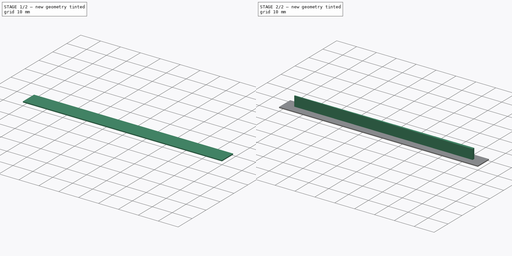
[diagram: build sequence overview — one tinted view per stage of 2, left to right]
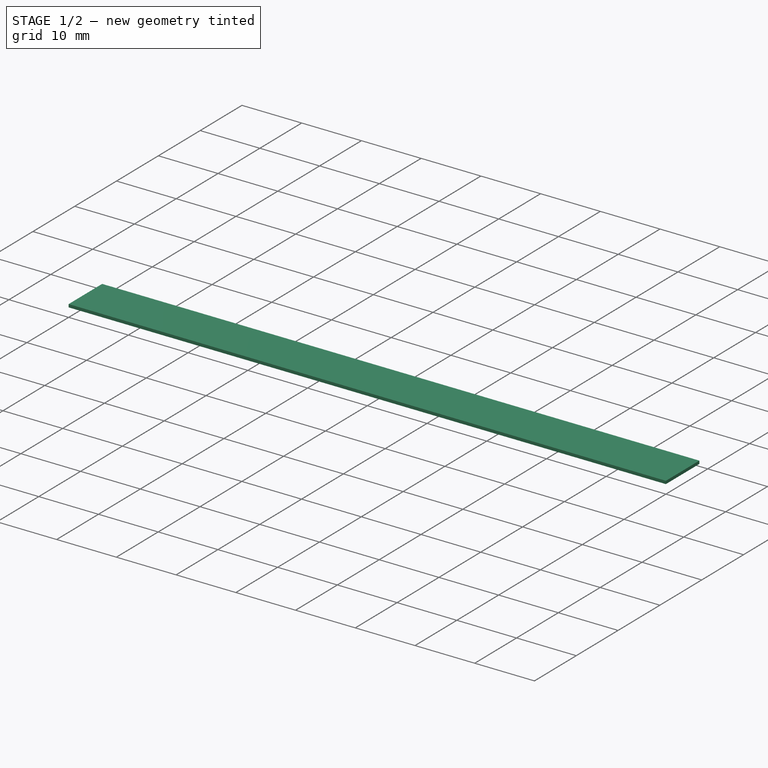
[diagram: stage 1 of 2 — iso view after this stage's code; geometry added in this stage tinted green]
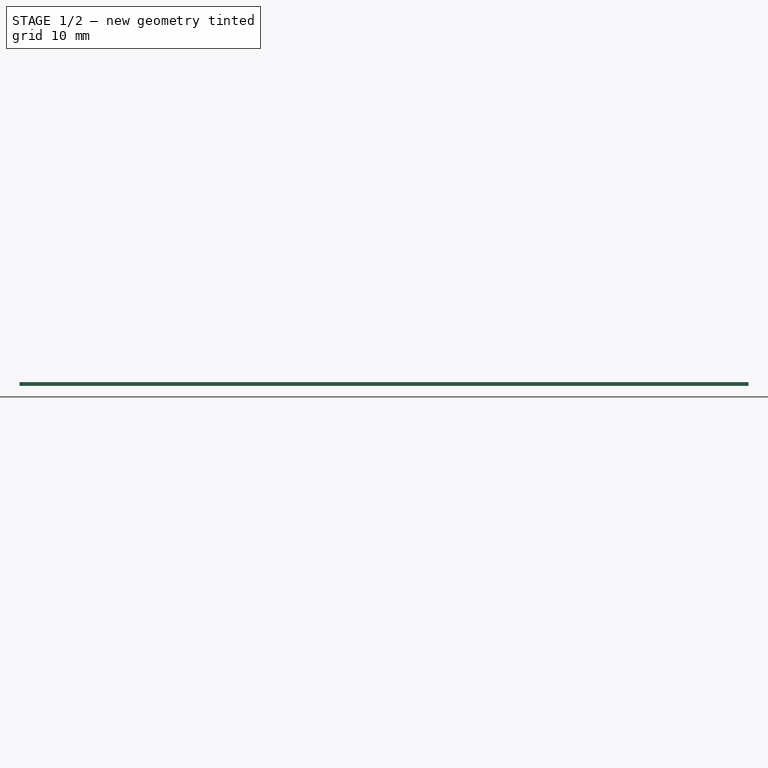
[diagram: stage 1 of 2 — front view after this stage's code; geometry added in this stage tinted green]
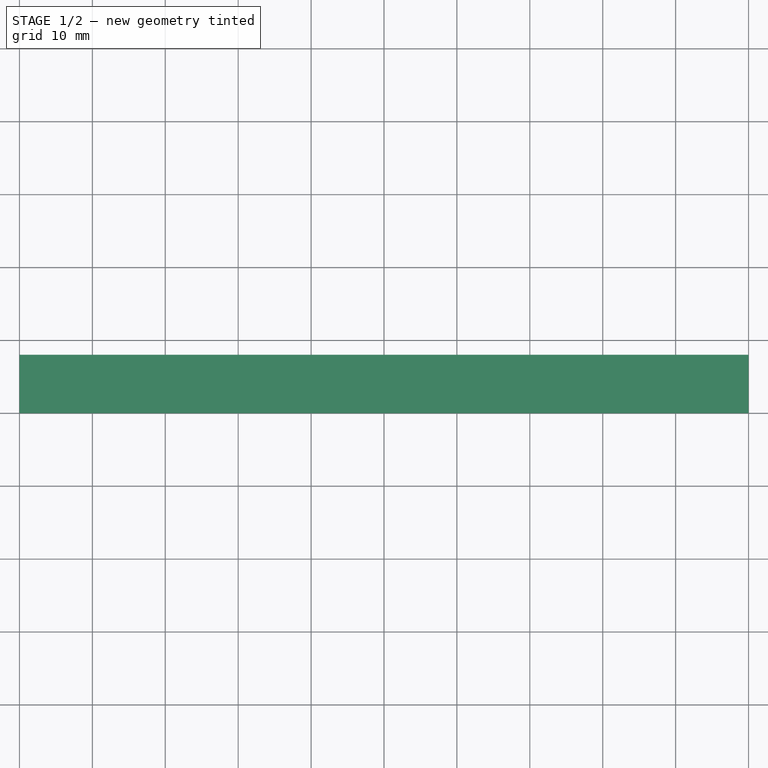
[diagram: stage 1 of 2 — top view after this stage's code; geometry added in this stage tinted green]
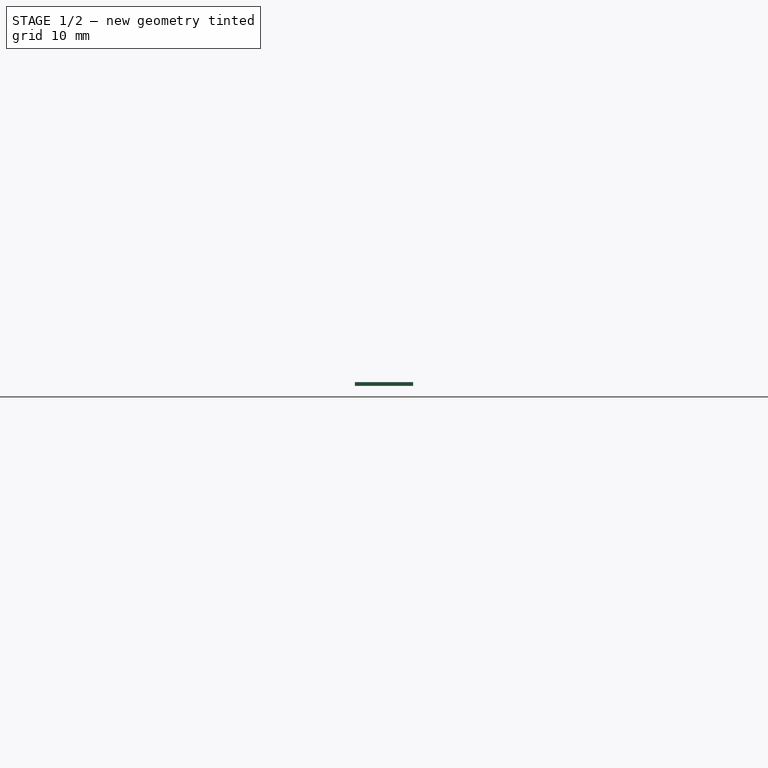
[diagram: stage 1 of 2 — right view after this stage's code; geometry added in this stage tinted green]
FCSTD DOCUMENT  (FreeCAD 0.20R25065 (Git))
Label: gap_fill
License: All rights reserved
LicenseURL: http://en.wikipedia.org/wiki/All_rights_reserved
objects: Sketcher::SketchObject×2, PartDesign::Pad×2, PartDesign::Body×1
note: 7 computed .brp shape members not serialized (recipe doc carries the construction recipe); baked Part::Feature solids carry a one-line shape summary decoded from their .brp

FEATURE [Sketcher::SketchObject] Sketch
  FullyConstrained = true
  MapMode = 5
  Support = -> [XY_Plane]
  sketch-geometry (4):
    g0: LineSegment StartX=0 StartY=0 StartZ=0 EndX=100 EndY=0 EndZ=0
    g1: LineSegment StartX=100 StartY=0 StartZ=0 EndX=100 EndY=8 EndZ=0
    g2: LineSegment StartX=100 StartY=8 StartZ=0 EndX=0 EndY=8 EndZ=0
    g3: LineSegment StartX=0 StartY=8 StartZ=0 EndX=0 EndY=0 EndZ=0
  constraints (11):
    c: Coincident(g0,g1)
    c: Coincident(g1,g2)
    c: Coincident(g2,g3)
    c: Coincident(g3,g0)
    c: Horizontal(g0)
    c: Horizontal(g2)
    c: Vertical(g1)
    c: Vertical(g3)
    c: Coincident(g0,g-1)
    c: Distance(g3) = 8
    c: Distance(g2) = 100
FEATURE [PartDesign::Pad] Pad
  Direction = (0,0,1)
  Length = 0.5
  Length2 = 100
  Profile = -> Sketch
  Type = 0
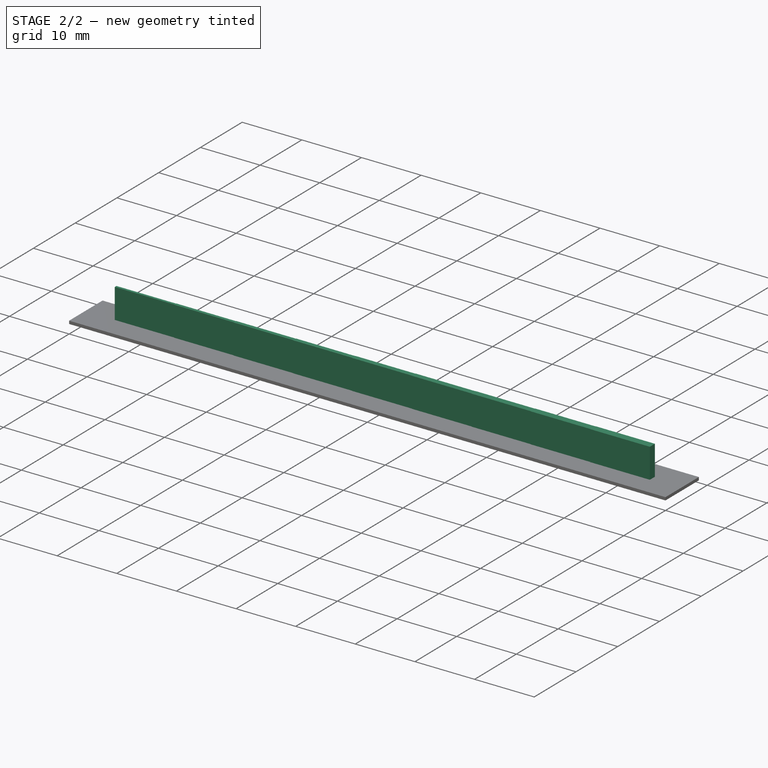
[diagram: stage 2 of 2 — iso view after this stage's code; geometry added in this stage tinted green]
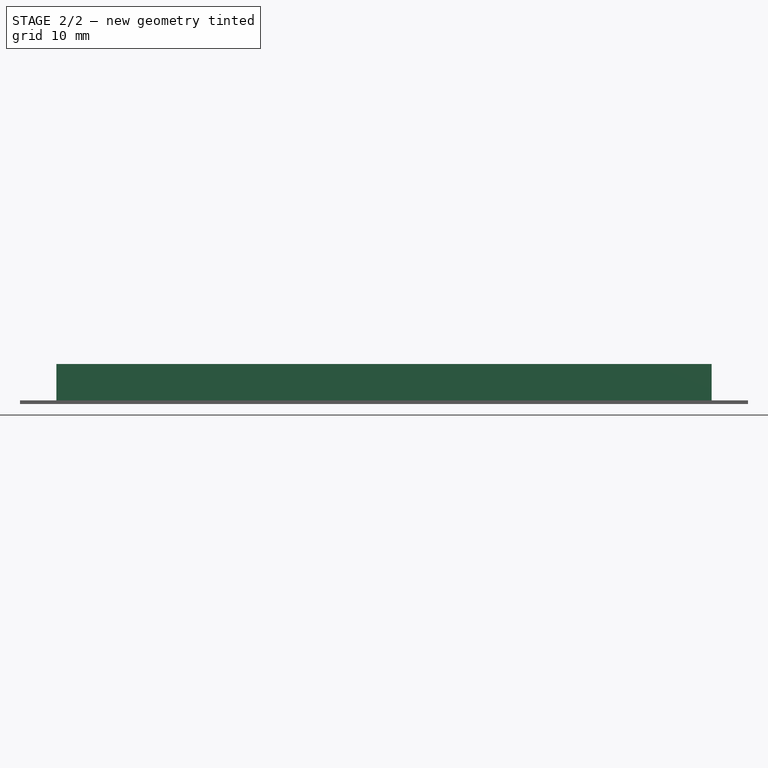
[diagram: stage 2 of 2 — front view after this stage's code; geometry added in this stage tinted green]
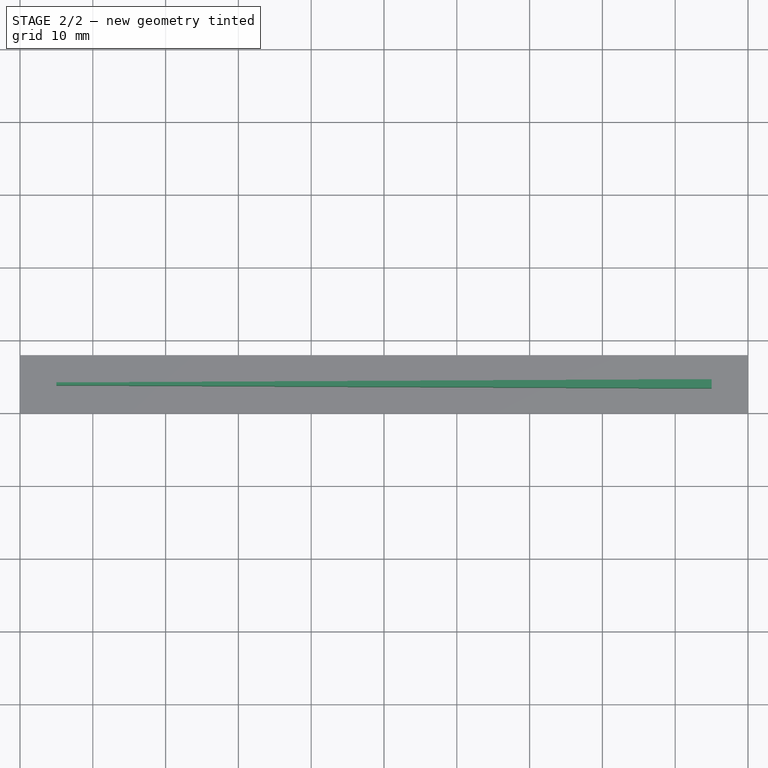
[diagram: stage 2 of 2 — top view after this stage's code; geometry added in this stage tinted green]
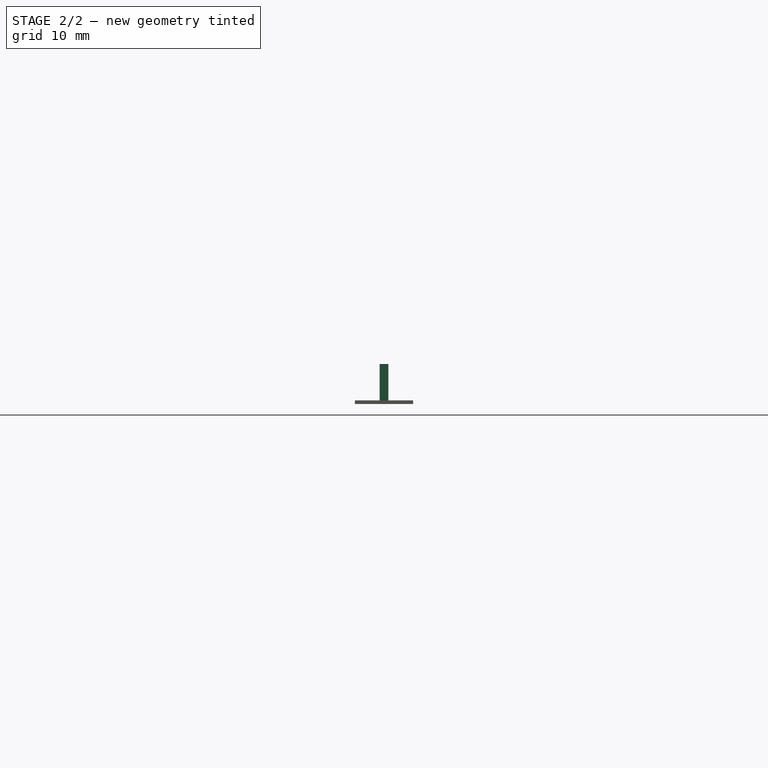
[diagram: stage 2 of 2 — right view after this stage's code; geometry added in this stage tinted green]
FEATURE [Sketcher::SketchObject] Sketch001
  FullyConstrained = false
  MapMode = 5
  Placement = pos=(0,0,0.5) rot=(0,0,1;0rad)
  Support = -> [Pad]
  sketch-geometry (37):
    g0: LineSegment StartX=0 StartY=4 StartZ=0 EndX=99.7559 EndY=4 EndZ=0
    g1: LineSegment StartX=5 StartY=4.2 StartZ=0 EndX=5 EndY=3.8 EndZ=0
    g2: LineSegment StartX=5 StartY=3.8 StartZ=0 EndX=15 EndY=3.8 EndZ=0
    g3: LineSegment StartX=15 StartY=4.25 StartZ=0 EndX=25 EndY=4.25 EndZ=0
    g4: LineSegment StartX=25 StartY=4.25 StartZ=0 EndX=25 EndY=4.3 EndZ=0
    g5: LineSegment StartX=25 StartY=4.3 StartZ=0 EndX=35 EndY=4.3 EndZ=0
    g6: LineSegment StartX=35 StartY=4.3 StartZ=0 EndX=35 EndY=4.35 EndZ=0
    g7: LineSegment StartX=35 StartY=4.35 StartZ=0 EndX=45 EndY=4.35 EndZ=0
    g8: LineSegment StartX=45 StartY=4.35 StartZ=0 EndX=45 EndY=4.4 EndZ=0
    g9: LineSegment StartX=45 StartY=4.4 StartZ=0 EndX=55 EndY=4.4 EndZ=0
    g10: LineSegment StartX=55 StartY=4.4 StartZ=0 EndX=55 EndY=4.45 EndZ=0
    g11: LineSegment StartX=55 StartY=4.45 StartZ=0 EndX=65 EndY=4.45 EndZ=0
    g12: LineSegment StartX=65 StartY=4.45 StartZ=0 EndX=65 EndY=4.5 EndZ=0
    g13: LineSegment StartX=65 StartY=4.5 StartZ=0 EndX=75 EndY=4.5 EndZ=0
    g14: LineSegment StartX=75 StartY=4.5 StartZ=0 EndX=75 EndY=4.55 EndZ=0
    g15: LineSegment StartX=75 StartY=4.55 StartZ=0 EndX=85 EndY=4.55 EndZ=0
    g16: LineSegment StartX=85 StartY=4.6 StartZ=0 EndX=95 EndY=4.6 EndZ=0
    g17: LineSegment StartX=95 StartY=4.6 StartZ=0 EndX=95 EndY=3.4 EndZ=0
    g18: LineSegment StartX=95 StartY=3.4 StartZ=0 EndX=85 EndY=3.4 EndZ=0
    g19: LineSegment StartX=85 StartY=3.4 StartZ=0 EndX=85 EndY=3.45 EndZ=0
    g20: LineSegment StartX=85 StartY=3.45 StartZ=0 EndX=75 EndY=3.45 EndZ=0
    g21: LineSegment StartX=75 StartY=3.45 StartZ=0 EndX=75 EndY=3.5 EndZ=0
    g22: LineSegment StartX=75 StartY=3.5 StartZ=0 EndX=65 EndY=3.5 EndZ=0
    g23: LineSegment StartX=65 StartY=3.5 StartZ=0 EndX=65 EndY=3.55 EndZ=0
    g24: LineSegment StartX=65 StartY=3.55 StartZ=0 EndX=55 EndY=3.55 EndZ=0
    g25: LineSegment StartX=55 StartY=3.55 StartZ=0 EndX=55 EndY=3.6 EndZ=0
    g26: LineSegment StartX=55 StartY=3.6 StartZ=0 EndX=45 EndY=3.6 EndZ=0
    g27: LineSegment StartX=45 StartY=3.6 StartZ=0 EndX=45 EndY=3.65 EndZ=0
    g28: LineSegment StartX=45 StartY=3.65 StartZ=0 EndX=35 EndY=3.65 EndZ=0
    g29: LineSegment StartX=35 StartY=3.65 StartZ=0 EndX=35 EndY=3.7 EndZ=0
    g30: LineSegment StartX=35 StartY=3.7 StartZ=0 EndX=25 EndY=3.7 EndZ=0
    g31: LineSegment StartX=25 StartY=3.7 StartZ=0 EndX=25 EndY=3.75 EndZ=0
    g32: LineSegment StartX=25 StartY=3.75 StartZ=0 EndX=15 EndY=3.75 EndZ=0
    g33: LineSegment StartX=5 StartY=4.2 StartZ=0 EndX=15 EndY=4.2 EndZ=0
    g34: LineSegment StartX=15 StartY=4.2 StartZ=0 EndX=15 EndY=4.25 EndZ=0
    g35: LineSegment StartX=15 StartY=3.75 StartZ=0 EndX=15 EndY=3.8 EndZ=0
    g36: LineSegment StartX=85 StartY=4.55 StartZ=0 EndX=85 EndY=4.6 EndZ=0
  constraints (101):
    c: PointOnObject(g0,g-2)
    c: Horizontal(g0)
    c: Coincident(g2,g1)
    c: Horizontal(g2)
    c: Horizontal(g3)
    c: Coincident(g4,g3)
    c: Coincident(g5,g4)
    c: Horizontal(g5)
    c: Coincident(g6,g5)
    c: Coincident(g7,g6)
    c: Horizontal(g7)
    c: Coincident(g8,g7)
    c: Vertical(g8)
    c: Coincident(g9,g8)
    c: Horizontal(g9)
    c: Coincident(g10,g9)
    c: Coincident(g11,g10)
    c: Horizontal(g11)
    c: Coincident(g12,g11)
    c: Coincident(g13,g12)
    c: Horizontal(g13)
    c: Coincident(g14,g13)
    c: Coincident(g15,g14)
    c: Horizontal(g15)
    c: Horizontal(g16)
    c: Coincident(g19,g18)
    c: Vertical(g19)
    c: Coincident(g20,g19)
    c: Horizontal(g20)
    c: Coincident(g21,g20)
    c: Vertical(g21)
    c: Coincident(g22,g21)
    c: Horizontal(g22)
    c: Coincident(g23,g22)
    c: Vertical(g23)
    c: Coincident(g24,g23)
    c: Horizontal(g24)
    c: Coincident(g25,g24)
    c: Vertical(g25)
    c: Coincident(g26,g25)
    c: Horizontal(g26)
    c: Coincident(g27,g26)
    c: Coincident(g28,g27)
    c: Horizontal(g28)
    c: Coincident(g29,g28)
    c: Vertical(g29)
    c: Coincident(g30,g29)
    c: Horizontal(g30)
    c: Coincident(g31,g30)
    c: Horizontal(g32)
    c: Coincident(g33,g1)
    c: Horizontal(g33)
    c: Vertical(g27)
    c: Symmetric(g16,g18,g0)
    c: Coincident(g18,g17)
    c: Coincident(g17,g16)
    c: Symmetric(g16,g17,g0)
    c: Symmetric(g14,g20,g0)
    c: Symmetric(g12,g22,g0)
    c: Symmetric(g10,g24,g0)
    c: Symmetric(g8,g26,g0)
    c: DistanceY(g-1,g0) = 4
    c: DistanceX(g-1,g1) = 5
    c: Symmetric(g1,g1,g0)
    c: Symmetric(g3,g32,g0)
    c: Symmetric(g4,g30,g0)
    c: Vertical(g4)
    c: Vertical(g31)
    c: Symmetric(g6,g28,g0)
    c: Vertical(g6)
    c: Distance(g1) = 0.4  'Step1'
    c: Distance(g3,g32) = 0.5  'Step2'
    c: Coincident(g31,g32)
    c: DistanceX(g1,g3) = 10
    c: Equal(g2,g3)
    c: Equal(g3,g5)
    c: Equal(g5,g7)
    c: Equal(g7,g9)
    c: Vertical(g10)
    c: Equal(g9,g11)
    c: Vertical(g12)
    c: Equal(g11,g13)
    c: Vertical(g14)
    c: Equal(g13,g15)
    c: Equal(g15,g16)
    c: Equal(g14,g12)
    c: Equal(g12,g10)
    c: Equal(g10,g8)
    c: Equal(g6,g8)
    c: Equal(g4,g6)
    c: Coincident(g34,g33)
    c: Coincident(g34,g3)
    c: Coincident(g35,g32)
    c: Coincident(g35,g2)
    c: Vertical(g35)
    c: Equal(g4,g34)
    c: Coincident(g36,g15)
    c: Coincident(g36,g16)
    c: Vertical(g36)
    c: Equal(g36,g14)
    c: Vertical(g34)
FEATURE [PartDesign::Pad] Pad001
  BaseFeature = -> Pad
  Direction = (0,0,1)
  Length = 5
  Length2 = 100
  Profile = -> Sketch001
  Type = 0
FEATURE [PartDesign::Body] Body  label="gap_fill"
  Group = -> [Sketch,Pad,Sketch001,Pad001]
  Origin = -> Origin
  Tip = -> Pad001
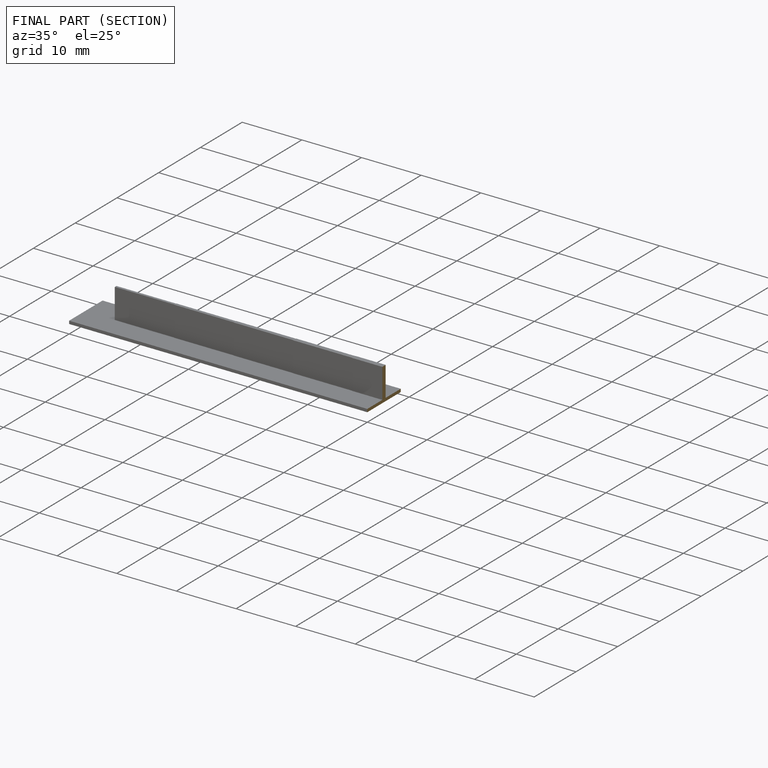
[diagram: finished part — half-section view (interior)]
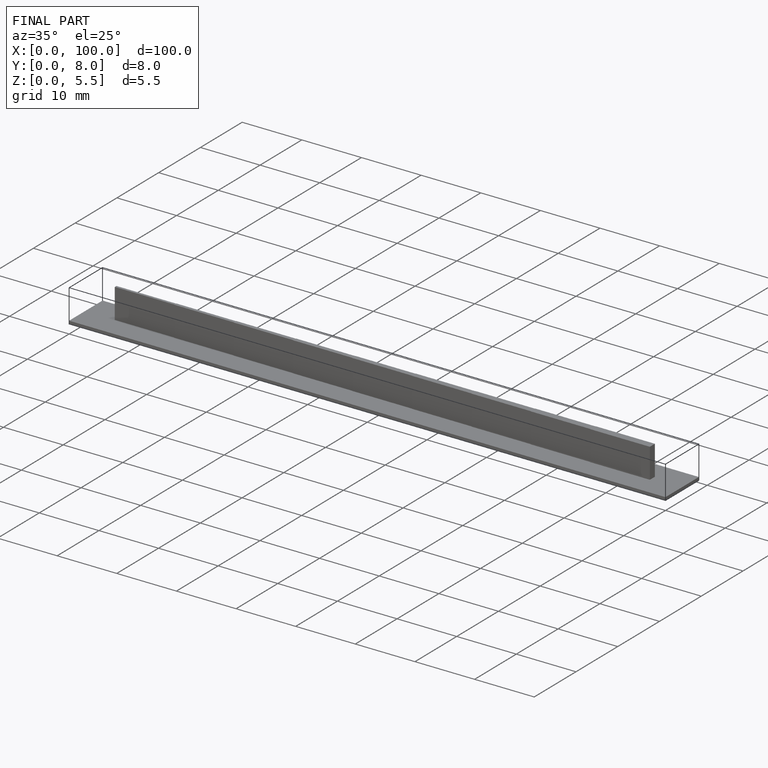
[diagram: finished part — iso view with bounding-box wireframe]
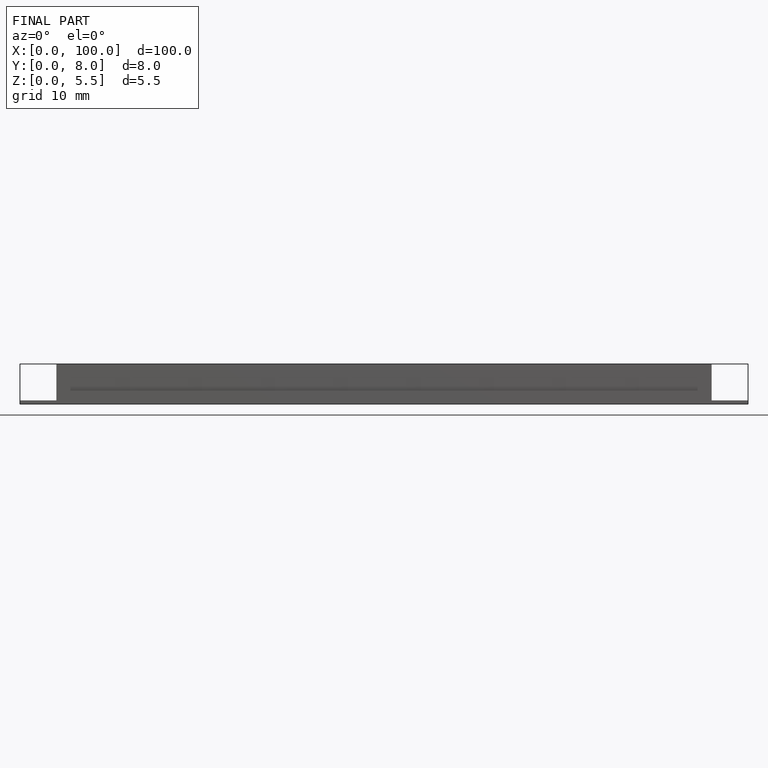
[diagram: finished part — front view with bounding-box wireframe]
